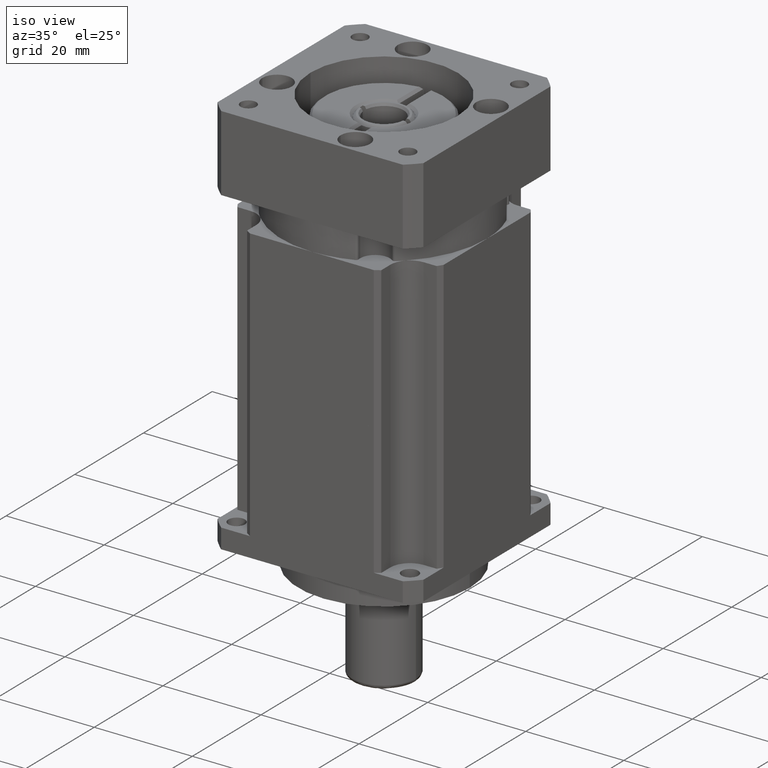
[diagram: clean part render]
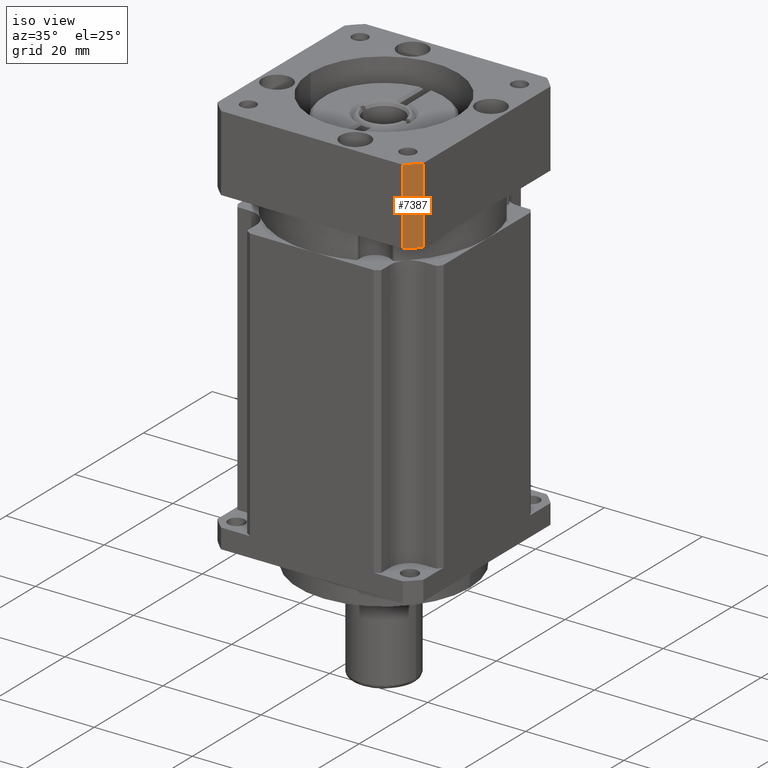
[diagram: same view with one face highlighted and labeled with its STEP entity id]
A machine part, iso view. The second image highlights one B-rep face of the part: STEP entity #7387.
In plain terms, the highlighted cylindrical surface (partial cylindrical patch) has radius 28 mm, axis along (0, 0, -1).
Its self-contained STEP definition (entity closure, byte-faithful):
#71 = EDGE_CURVE ( 'NONE', #4379, #11009, #10958, .T. ) ;
#145 = ORIENTED_EDGE ( 'NONE', *, *, #71, .F. ) ;
#584 = EDGE_CURVE ( 'NONE', #2961, #9703, #4615, .T. ) ;
#808 = CIRCLE ( 'NONE', #5423, 27.99999999999999300 ) ;
#974 = VECTOR ( 'NONE', #11141, 1000.000000000000000 ) ;
#1182 = EDGE_CURVE ( 'NONE', #2961, #4379, #808, .T. ) ;
#1633 = CARTESIAN_POINT ( 'NONE',  ( 3.469446951953614200E-015, 15.50000000000000000, 6.938893903907228400E-015 ) ) ;
#2020 = DIRECTION ( 'NONE',  ( 0.0000000000000000000, 1.000000000000000000, 0.0000000000000000000 ) ) ;
#2069 = AXIS2_PLACEMENT_3D ( 'NONE', #3048, #2020, #11145 ) ;
#2469 = DIRECTION ( 'NONE',  ( -0.0000000000000000000, -1.000000000000000000, -0.0000000000000000000 ) ) ;
#2544 = DIRECTION ( 'NONE',  ( 0.0000000000000000000, 0.0000000000000000000, 1.000000000000000000 ) ) ;
#2961 = VERTEX_POINT ( 'NONE', #5378 ) ;
#3048 = CARTESIAN_POINT ( 'NONE',  ( 3.469446951953614200E-015, 0.0000000000000000000, 6.938893903907228400E-015 ) ) ;
#3454 = ORIENTED_EDGE ( 'NONE', *, *, #5709, .T. ) ;
#4379 = VERTEX_POINT ( 'NONE', #9506 ) ;
#4615 = LINE ( 'NONE', #9074, #4761 ) ;
#4700 = CIRCLE ( 'NONE', #2069, 27.99999999999999300 ) ;
#4761 = VECTOR ( 'NONE', #10839, 1000.000000000000000 ) ;
#4952 = CYLINDRICAL_SURFACE ( 'NONE', #7374, 27.99999999999999300 ) ;
#5090 = FACE_OUTER_BOUND ( 'NONE', #5698, .T. ) ;
#5378 = CARTESIAN_POINT ( 'NONE',  ( 20.99999999999998900, 15.50000000000000000, -18.52025917745212900 ) ) ;
#5423 = AXIS2_PLACEMENT_3D ( 'NONE', #7897, #10554, #2544 ) ;
#5659 = ORIENTED_EDGE ( 'NONE', *, *, #1182, .F. ) ;
#5698 = EDGE_LOOP ( 'NONE', ( #3454, #145, #5659, #8350 ) ) ;
#5709 = EDGE_CURVE ( 'NONE', #9703, #11009, #4700, .T. ) ;
#5893 = CARTESIAN_POINT ( 'NONE',  ( 18.52025917745213200, 15.50000000000000000, -20.99999999999998200 ) ) ;
#5949 = CARTESIAN_POINT ( 'NONE',  ( 18.52025917745213200, 0.0000000000000000000, -20.99999999999998200 ) ) ;
#7374 = AXIS2_PLACEMENT_3D ( 'NONE', #1633, #2469, #9635 ) ;
#7387 = ADVANCED_FACE ( 'NONE', ( #5090 ), #4952, .T. ) ;
#7897 = CARTESIAN_POINT ( 'NONE',  ( 3.469446951953614200E-015, 15.50000000000000000, 6.938893903907228400E-015 ) ) ;
#8350 = ORIENTED_EDGE ( 'NONE', *, *, #584, .T. ) ;
#9074 = CARTESIAN_POINT ( 'NONE',  ( 20.99999999999998900, 15.50000000000000000, -18.52025917745212900 ) ) ;
#9506 = CARTESIAN_POINT ( 'NONE',  ( 18.52025917745213200, 15.50000000000000000, -20.99999999999998200 ) ) ;
#9635 = DIRECTION ( 'NONE',  ( 0.0000000000000000000, 0.0000000000000000000, -1.000000000000000000 ) ) ;
#9703 = VERTEX_POINT ( 'NONE', #10026 ) ;
#10026 = CARTESIAN_POINT ( 'NONE',  ( 20.99999999999998900, 0.0000000000000000000, -18.52025917745212900 ) ) ;
#10554 = DIRECTION ( 'NONE',  ( 0.0000000000000000000, 1.000000000000000000, 0.0000000000000000000 ) ) ;
#10839 = DIRECTION ( 'NONE',  ( -0.0000000000000000000, -1.000000000000000000, -0.0000000000000000000 ) ) ;
#10958 = LINE ( 'NONE', #5893, #974 ) ;
#11009 = VERTEX_POINT ( 'NONE', #5949 ) ;
#11141 = DIRECTION ( 'NONE',  ( -0.0000000000000000000, -1.000000000000000000, -0.0000000000000000000 ) ) ;
#11145 = DIRECTION ( 'NONE',  ( 0.0000000000000000000, 0.0000000000000000000, 1.000000000000000000 ) ) ;